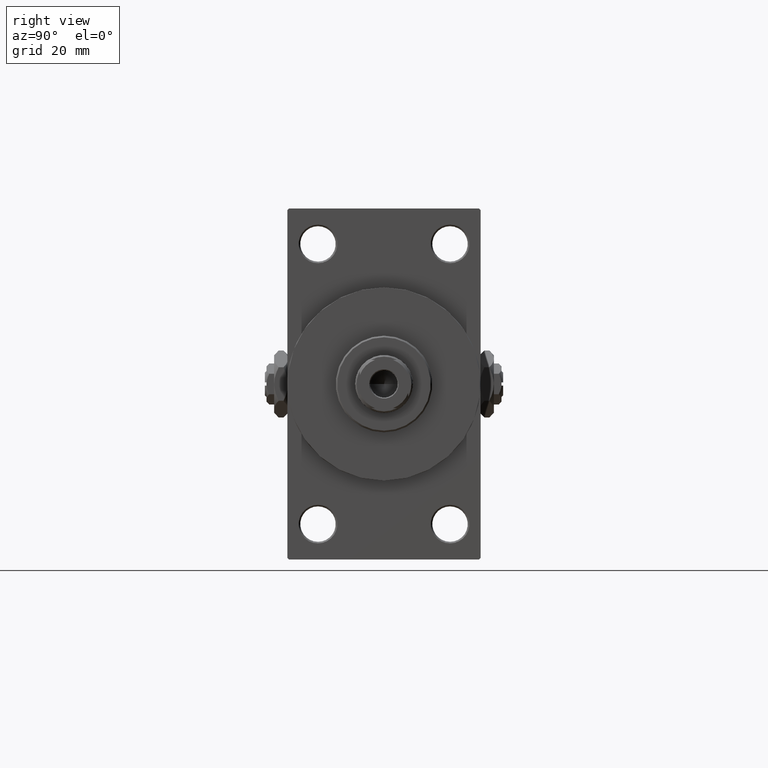
[diagram: clean part render]
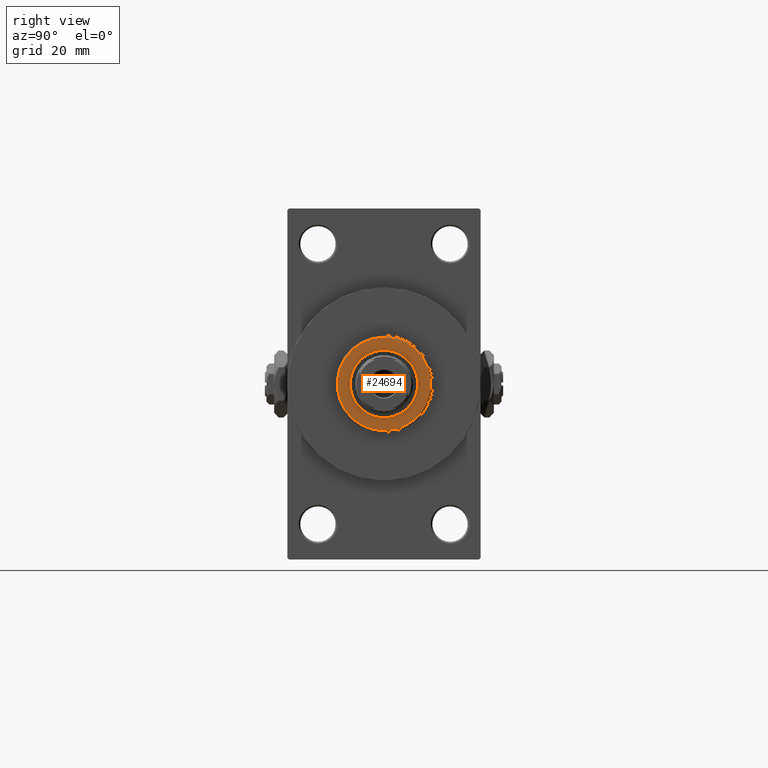
[diagram: same view with one face highlighted and labeled with its STEP entity id]
A machine part, right view. The second image highlights one B-rep face of the part: STEP entity #24694.
In plain terms, the highlighted planar face has unit normal (1, -0, -0).
Its self-contained STEP definition (entity closure, byte-faithful):
#1369 = VERTEX_POINT ( 'NONE', #29593 ) ;
#2977 = VERTEX_POINT ( 'NONE', #14300 ) ;
#5329 = DIRECTION ( 'NONE',  ( 1.000000000000000000, 0.000000000000000000, -0.000000000000000000 ) ) ;
#6759 = DIRECTION ( 'NONE',  ( 0.000000000000000000, 0.000000000000000000, 1.000000000000000000 ) ) ;
#7663 = DIRECTION ( 'NONE',  ( 0.000000000000000000, 0.000000000000000000, 1.000000000000000000 ) ) ;
#8649 = AXIS2_PLACEMENT_3D ( 'NONE', #44948, #33814, #41736 ) ;
#9272 = FACE_BOUND ( 'NONE', #17959, .T. ) ;
#10626 = VERTEX_POINT ( 'NONE', #29443 ) ;
#11004 = CIRCLE ( 'NONE', #8649, 14.49999999999999112 ) ;
#11133 = AXIS2_PLACEMENT_3D ( 'NONE', #39989, #28830, #5329 ) ;
#11883 = EDGE_LOOP ( 'NONE', ( #36101, #46053 ) ) ;
#14300 = CARTESIAN_POINT ( 'NONE',  ( 10.50000000000000000, 0.000000000000000000, 51.25999999999999801 ) ) ;
#15548 = EDGE_CURVE ( 'NONE', #26056, #2977, #46520, .T. ) ;
#17185 = PLANE ( 'NONE',  #11133 ) ;
#17399 = DIRECTION ( 'NONE',  ( 1.000000000000000000, 0.000000000000000000, 0.000000000000000000 ) ) ;
#17881 = CARTESIAN_POINT ( 'NONE',  ( -10.50000000000000000, 1.285879139104720831E-15, 51.25999999999999801 ) ) ;
#17959 = EDGE_LOOP ( 'NONE', ( #28788, #43827 ) ) ;
#19660 = AXIS2_PLACEMENT_3D ( 'NONE', #22095, #6759, #17399 ) ;
#22095 = CARTESIAN_POINT ( 'NONE',  ( 0.000000000000000000, 0.000000000000000000, 51.25999999999999801 ) ) ;
#22898 = EDGE_CURVE ( 'NONE', #1369, #10626, #45074, .T. ) ;
#23169 = EDGE_CURVE ( 'NONE', #2977, #26056, #47454, .T. ) ;
#24377 = FACE_OUTER_BOUND ( 'NONE', #11883, .T. ) ;
#24523 = AXIS2_PLACEMENT_3D ( 'NONE', #26477, #7663, #33426 ) ;
#24694 = ADVANCED_FACE ( 'NONE', ( #9272, #24377 ), #17185, .T. ) ;
#26056 = VERTEX_POINT ( 'NONE', #17881 ) ;
#26477 = CARTESIAN_POINT ( 'NONE',  ( 0.000000000000000000, 0.000000000000000000, 51.25999999999999801 ) ) ;
#27672 = AXIS2_PLACEMENT_3D ( 'NONE', #28583, #39750, #43710 ) ;
#28583 = CARTESIAN_POINT ( 'NONE',  ( 0.000000000000000000, 0.000000000000000000, 51.25999999999999801 ) ) ;
#28788 = ORIENTED_EDGE ( 'NONE', *, *, #23169, .F. ) ;
#28830 = DIRECTION ( 'NONE',  ( 0.000000000000000000, 0.000000000000000000, 1.000000000000000000 ) ) ;
#29443 = CARTESIAN_POINT ( 'NONE',  ( 14.49999999999999112, 1.806354028742345013E-15, 51.25999999999999801 ) ) ;
#29593 = CARTESIAN_POINT ( 'NONE',  ( -14.49999999999999112, 0.000000000000000000, 51.25999999999999801 ) ) ;
#33426 = DIRECTION ( 'NONE',  ( 1.000000000000000000, 0.000000000000000000, 0.000000000000000000 ) ) ;
#33814 = DIRECTION ( 'NONE',  ( 0.000000000000000000, 0.000000000000000000, 1.000000000000000000 ) ) ;
#36101 = ORIENTED_EDGE ( 'NONE', *, *, #22898, .T. ) ;
#39750 = DIRECTION ( 'NONE',  ( 0.000000000000000000, 0.000000000000000000, 1.000000000000000000 ) ) ;
#39989 = CARTESIAN_POINT ( 'NONE',  ( 0.000000000000000000, 0.000000000000000000, 51.25999999999999801 ) ) ;
#41736 = DIRECTION ( 'NONE',  ( 1.000000000000000000, 0.000000000000000000, 0.000000000000000000 ) ) ;
#43710 = DIRECTION ( 'NONE',  ( 1.000000000000000000, 0.000000000000000000, 0.000000000000000000 ) ) ;
#43827 = ORIENTED_EDGE ( 'NONE', *, *, #15548, .F. ) ;
#43898 = EDGE_CURVE ( 'NONE', #10626, #1369, #11004, .T. ) ;
#44948 = CARTESIAN_POINT ( 'NONE',  ( 0.000000000000000000, 0.000000000000000000, 51.25999999999999801 ) ) ;
#45074 = CIRCLE ( 'NONE', #27672, 14.49999999999999112 ) ;
#46053 = ORIENTED_EDGE ( 'NONE', *, *, #43898, .T. ) ;
#46520 = CIRCLE ( 'NONE', #19660, 10.50000000000000000 ) ;
#47454 = CIRCLE ( 'NONE', #24523, 10.50000000000000000 ) ;